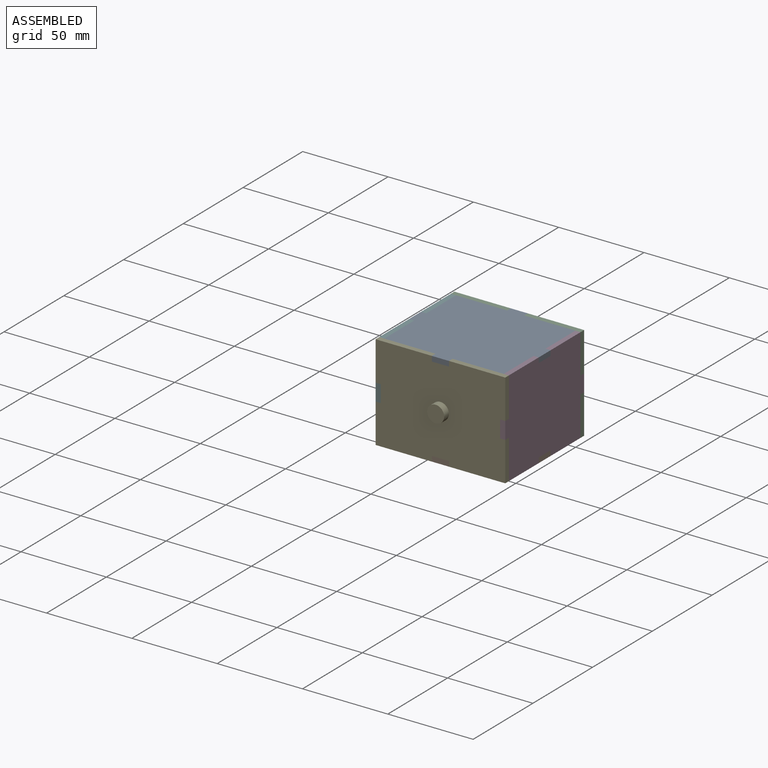
[diagram: assembled view]
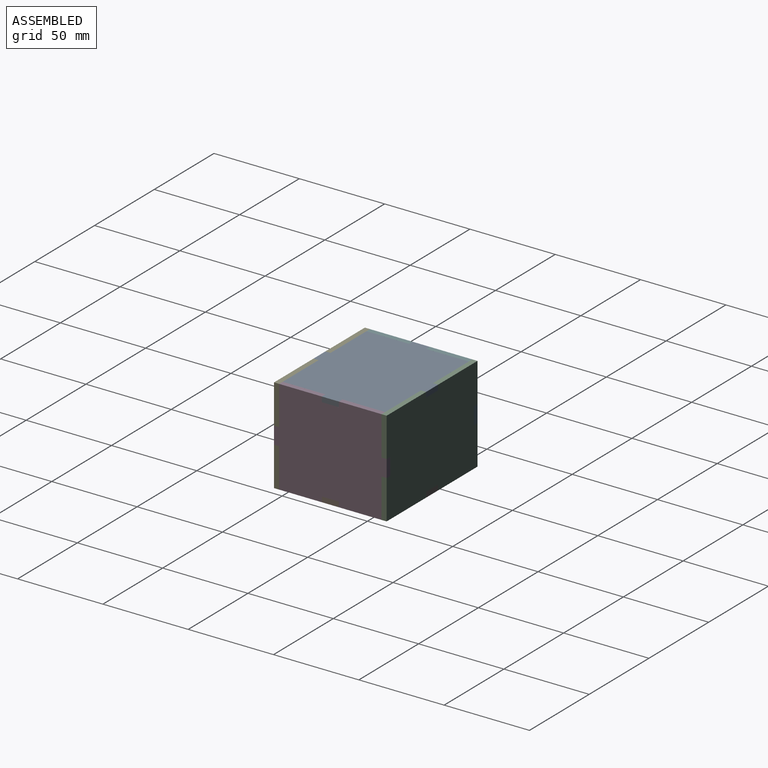
[diagram: assembled view, second angle]
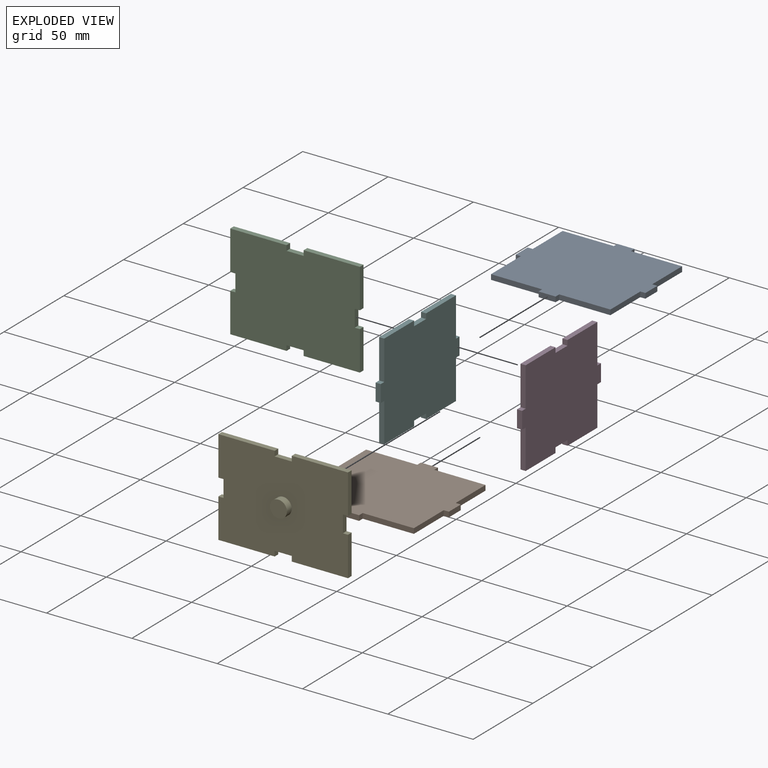
[diagram: exploded view]
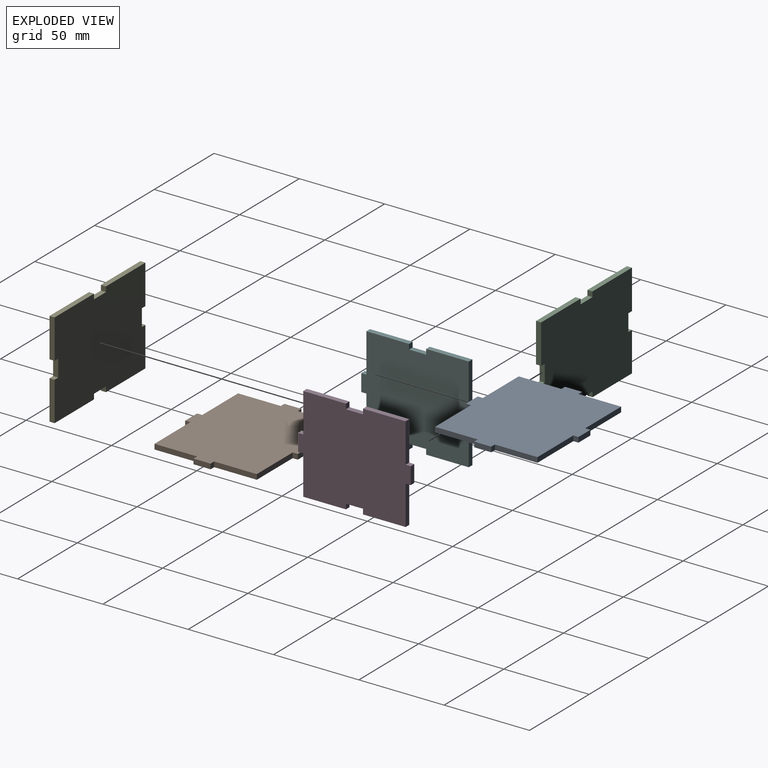
[diagram: exploded view, second angle]
ASSEMBLY  parts=6 mates=5
PART A: 22 faces, bbox 66x76x3 mm
  f0: plane 3x3mm, normal (1,0,0), area 9mm2, adj f1,f19,f20,f21
  f1: plane 10x3mm, normal (0,1,0), area 30mm2, adj f0,f2,f20,f21
  f2: plane 3x3mm, normal (-1,0,0), area 9mm2, adj f1,f3,f20,f21
  f3: plane 25x3mm, normal (0,1,0), area 75mm2, adj f2,f4,f20,f21
  f4: plane 30x3mm, normal (-1,0,0), area 90mm2, adj f3,f5,f20,f21
  f5: plane 3x3mm, normal (0,1,0), area 9mm2, adj f4,f6,f20,f21
  f6: plane 10x3mm, normal (-1,0,0), area 30mm2, adj f5,f7,f20,f21
  f7: plane 3x3mm, normal (0,-1,0), area 9mm2, adj f6,f8,f20,f21
  f8: plane 30x3mm, normal (-1,0,0), area 90mm2, adj f7,f9,f20,f21
  f9: plane 25x3mm, normal (0,-1,0), area 75mm2, adj f8,f10,f20,f21
  f10: plane 3x3mm, normal (-1,0,0), area 9mm2, adj f9,f11,f20,f21
  f11: plane 10x3mm, normal (0,-1,0), area 30mm2, adj f10,f12,f20,f21
  f12: plane 3x3mm, normal (1,0,0), area 9mm2, adj f11,f13,f20,f21
  f13: plane 25x3mm, normal (0,-1,0), area 75mm2, adj f12,f14,f20,f21
  f14: plane 30x3mm, normal (1,0,0), area 90mm2, adj f13,f15,f20,f21
  f15: plane 3x3mm, normal (0,-1,0), area 9mm2, adj f14,f16,f20,f21
  f16: plane 10x3mm, normal (1,0,0), area 30mm2, adj f15,f17,f20,f21
  f17: plane 3x3mm, normal (0,1,0), area 9mm2, adj f16,f18,f20,f21
  f18: plane 30x3mm, normal (1,0,0), area 90mm2, adj f17,f19,f20,f21
  f19: plane 25x3mm, normal (0,1,0), area 75mm2, adj f0,f18,f20,f21
  f20: plane 76x66mm, normal (0,0,1), area 4320mm2, adj f0,f1,f2,f3,f4,f5,f6,f7
  f21: plane 76x66mm, normal (0,0,-1), area 4320mm2, adj f0,f1,f2,f3,f4,f5,f6,f7
PART B: same geometry as A
PART C: 22 faces, bbox 76x3x56 mm
  f0: plane 10x3mm, normal (-1,0,0), area 30mm2, adj f1,f19,f20,f21
  f1: plane 3x3mm, normal (0,0,1), area 9mm2, adj f0,f2,f20,f21
  f2: plane 23x3mm, normal (-1,0,0), area 69mm2, adj f1,f3,f20,f21
  f3: plane 33x3mm, normal (0,0,-1), area 99mm2, adj f2,f4,f20,f21
  f4: plane 3x3mm, normal (1,0,0), area 9mm2, adj f3,f5,f20,f21
  f5: plane 10x3mm, normal (0,0,-1), area 30mm2, adj f4,f6,f20,f21
  f6: plane 3x3mm, normal (-1,0,0), area 9mm2, adj f5,f7,f20,f21
  f7: plane 33x3mm, normal (0,0,-1), area 99mm2, adj f6,f8,f20,f21
  f8: plane 23x3mm, normal (1,0,0), area 69mm2, adj f7,f9,f20,f21
  f9: plane 3x3mm, normal (0,0,1), area 9mm2, adj f8,f10,f20,f21
  f10: plane 10x3mm, normal (1,0,0), area 30mm2, adj f9,f11,f20,f21
  f11: plane 3x3mm, normal (0,0,-1), area 9mm2, adj f10,f12,f20,f21
  f12: plane 23x3mm, normal (1,0,0), area 69mm2, adj f11,f13,f20,f21
  f13: plane 33x3mm, normal (0,0,1), area 99mm2, adj f12,f14,f20,f21
  f14: plane 3x3mm, normal (-1,0,0), area 9mm2, adj f13,f15,f20,f21
  f15: plane 10x3mm, normal (0,0,1), area 30mm2, adj f14,f16,f20,f21
  f16: plane 3x3mm, normal (1,0,0), area 9mm2, adj f15,f17,f20,f21
  f17: plane 33x3mm, normal (0,0,1), area 99mm2, adj f16,f18,f20,f21
  f18: plane 23x3mm, normal (-1,0,0), area 69mm2, adj f17,f19,f20,f21
  f19: plane 3x3mm, normal (0,0,-1), area 9mm2, adj f0,f18,f20,f21
  f20: plane 76x56mm, normal (0,-1,0), area 4136mm2, adj f0,f1,f2,f3,f4,f5,f6,f7
  f21: plane 76x56mm, normal (0,1,0), area 4136mm2, adj f0,f1,f2,f3,f4,f5,f6,f7
PART D: 22 faces, bbox 3x66x56 mm
  f0: plane 25x3mm, normal (0,0,1), area 75mm2, adj f1,f19,f20,f21
  f1: plane 3x3mm, normal (0,-1,0), area 9mm2, adj f0,f2,f20,f21
  f2: plane 10x3mm, normal (0,0,1), area 30mm2, adj f1,f3,f20,f21
  f3: plane 3x3mm, normal (0,1,0), area 9mm2, adj f2,f4,f20,f21
  f4: plane 25x3mm, normal (0,0,1), area 75mm2, adj f3,f5,f20,f21
  f5: plane 23x3mm, normal (0,-1,0), area 69mm2, adj f4,f6,f20,f21
  f6: plane 3x3mm, normal (0,0,1), area 9mm2, adj f5,f7,f20,f21
  f7: plane 10x3mm, normal (0,-1,0), area 30mm2, adj f6,f8,f20,f21
  f8: plane 3x3mm, normal (0,0,-1), area 9mm2, adj f7,f9,f20,f21
  f9: plane 23x3mm, normal (0,-1,0), area 69mm2, adj f8,f10,f20,f21
  f10: plane 25x3mm, normal (0,0,-1), area 75mm2, adj f9,f11,f20,f21
  f11: plane 3x3mm, normal (0,1,0), area 9mm2, adj f10,f12,f20,f21
  f12: plane 10x3mm, normal (0,0,-1), area 30mm2, adj f11,f13,f20,f21
  f13: plane 3x3mm, normal (0,-1,0), area 9mm2, adj f12,f14,f20,f21
  f14: plane 25x3mm, normal (0,0,-1), area 75mm2, adj f13,f15,f20,f21
  f15: plane 23x3mm, normal (0,1,0), area 69mm2, adj f14,f16,f20,f21
  f16: plane 3x3mm, normal (0,0,-1), area 9mm2, adj f15,f17,f20,f21
  f17: plane 10x3mm, normal (0,1,0), area 30mm2, adj f16,f18,f20,f21
  f18: plane 3x3mm, normal (0,0,1), area 9mm2, adj f17,f19,f20,f21
  f19: plane 23x3mm, normal (0,1,0), area 69mm2, adj f0,f18,f20,f21
  f20: plane 66x56mm, normal (1,0,0), area 3360mm2, adj f0,f1,f2,f3,f4,f5,f6,f7
  f21: plane 66x56mm, normal (-1,0,0), area 3360mm2, adj f0,f1,f2,f3,f4,f5,f6,f7
PART E: 24 faces, bbox 76x7x56 mm
  f0: plane 10x3mm, normal (-1,0,0), area 30mm2, adj f1,f19,f20,f21
  f1: plane 3x3mm, normal (0,0,1), area 9mm2, adj f0,f2,f20,f21
  f2: plane 23x3mm, normal (-1,0,0), area 69mm2, adj f1,f3,f20,f21
  f3: plane 33x3mm, normal (0,0,-1), area 99mm2, adj f2,f4,f20,f21
  f4: plane 3x3mm, normal (1,0,0), area 9mm2, adj f3,f5,f20,f21
  f5: plane 10x3mm, normal (0,0,-1), area 30mm2, adj f4,f6,f20,f21
  f6: plane 3x3mm, normal (-1,0,0), area 9mm2, adj f5,f7,f20,f21
  f7: plane 33x3mm, normal (0,0,-1), area 99mm2, adj f6,f8,f20,f21
  f8: plane 23x3mm, normal (1,0,0), area 69mm2, adj f7,f9,f20,f21
  f9: plane 3x3mm, normal (0,0,1), area 9mm2, adj f8,f10,f20,f21
  f10: plane 10x3mm, normal (1,0,0), area 30mm2, adj f9,f11,f20,f21
  f11: plane 3x3mm, normal (0,0,-1), area 9mm2, adj f10,f12,f20,f21
  f12: plane 23x3mm, normal (1,0,0), area 69mm2, adj f11,f13,f20,f21
  f13: plane 33x3mm, normal (0,0,1), area 99mm2, adj f12,f14,f20,f21
  f14: plane 3x3mm, normal (-1,0,0), area 9mm2, adj f13,f15,f20,f21
  f15: plane 10x3mm, normal (0,0,1), area 30mm2, adj f14,f16,f20,f21
  f16: plane 3x3mm, normal (1,0,0), area 9mm2, adj f15,f17,f20,f21
  f17: plane 33x3mm, normal (0,0,1), area 99mm2, adj f16,f18,f20,f21
  f18: plane 23x3mm, normal (-1,0,0), area 69mm2, adj f17,f19,f20,f21
  f19: plane 3x3mm, normal (0,0,-1), area 9mm2, adj f0,f18,f20,f21
  f20: plane 76x56mm, normal (0,-1,0), area 4057.5mm2, adj f0,f1,f2,f3,f4,f5,f6,f7
  f21: plane 76x56mm, normal (0,1,0), area 4136mm2, adj f0,f1,f2,f3,f4,f5,f6,f7
  f22: cylinder r=5mm len=10mm, axis (0,1,0), area 125.7mm2, adj f20,f23
  f23: plane 10x10mm, normal (0,-1,0), area 78.5mm2, adj f22
PART F: same geometry as D
PLACE A rot(axis=(0,0,-1),90deg) t=(10.03,-23.09,28.94)mm
PLACE B rot(axis=(0,0,1),90deg) t=(10.03,-23.09,-24.06)mm
PLACE C t=(10.03,9.91,3.94)mm fixed
PLACE D t=(45.03,-23.09,3.94)mm
PLACE E t=(10.03,-53.09,3.94)mm
PLACE F t=(-27.97,-23.09,3.94)mm
MATE planar A.f10 <-> F.f1  axis (0,1,0) through (-26.47,-18.09,30.44)mm
MATE planar C.f4 <-> B.f17  axis (1,0,0) through (5.03,8.41,-22.56)mm
MATE planar A.f15 <-> E.f16  axis (-1,0,0) through (5.03,-54.59,30.44)mm
MATE planar D.f3 <-> A.f0  axis (0,1,0) through (46.53,-28.09,30.44)mm
MATE planar A.f7 <-> C.f16  axis (-1,0,0) through (5.03,8.41,30.44)mm
